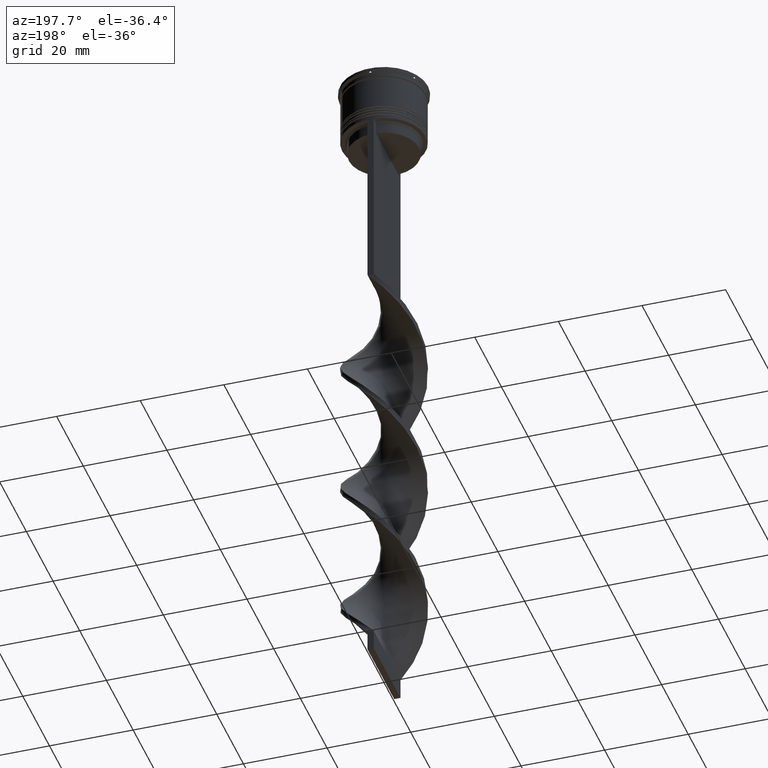
[diagram: clean part render]
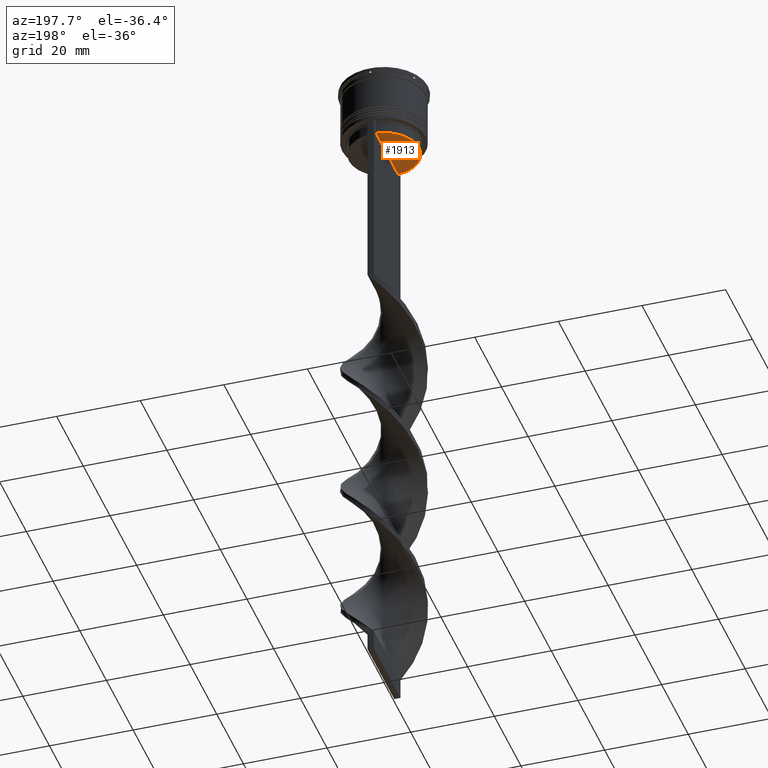
[diagram: same view with one face highlighted and labeled with its STEP entity id]
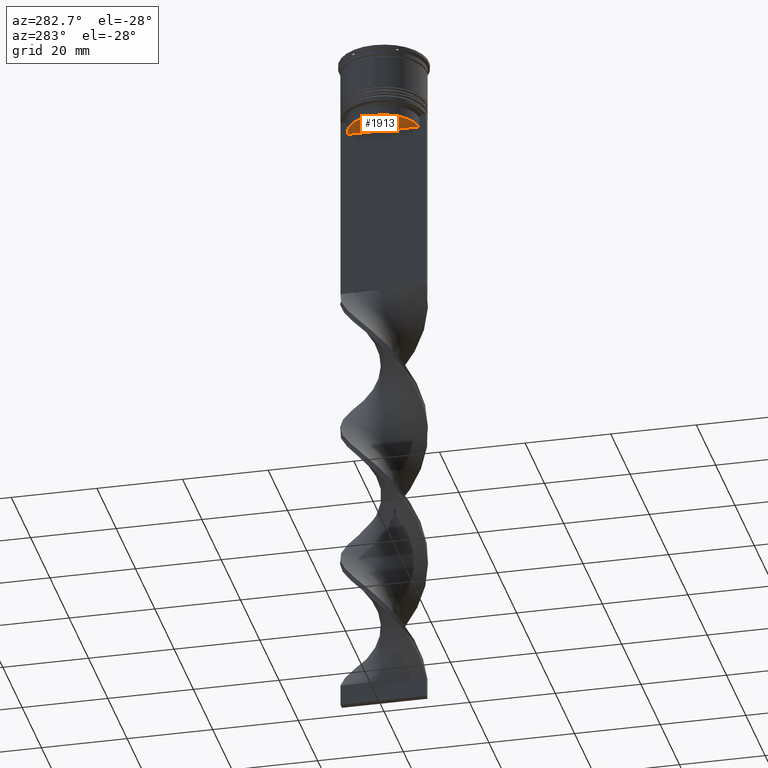
[diagram: same view with one face highlighted and labeled with its STEP entity id]
A machine part, auxiliary view. The second image highlights one B-rep face of the part: STEP entity #1913.
A second angle (auxiliary view) of the same face is appended — the face is thin or edge-on in the first view.
In plain terms, the highlighted planar face has unit normal (0, -0, 1).
Its self-contained STEP definition (entity closure, byte-faithful):
#112 = CIRCLE ( 'NONE', #235, 8.400000000000003908 ) ;
#235 = AXIS2_PLACEMENT_3D ( 'NONE', #1210, #3638, #3008 ) ;
#352 = PLANE ( 'NONE',  #366 ) ;
#366 = AXIS2_PLACEMENT_3D ( 'NONE', #436, #3394, #3734 ) ;
#371 = VECTOR ( 'NONE', #3419, 1000.000000000000000 ) ;
#400 = EDGE_LOOP ( 'NONE', ( #1819, #588 ) ) ;
#436 = CARTESIAN_POINT ( 'NONE',  ( 0.000000000000000000, 8.400000000000003908, -17.00000000000000000 ) ) ;
#588 = ORIENTED_EDGE ( 'NONE', *, *, #3402, .T. ) ;
#1016 = LINE ( 'NONE', #3700, #371 ) ;
#1210 = CARTESIAN_POINT ( 'NONE',  ( 0.000000000000000000, 0.000000000000000000, -17.00000000000000000 ) ) ;
#1286 = FACE_OUTER_BOUND ( 'NONE', #400, .T. ) ;
#1314 = EDGE_CURVE ( 'NONE', #3636, #2697, #112, .T. ) ;
#1819 = ORIENTED_EDGE ( 'NONE', *, *, #1314, .F. ) ;
#1913 = ADVANCED_FACE ( 'NONE', ( #1286 ), #352, .F. ) ;
#2697 = VERTEX_POINT ( 'NONE', #2862 ) ;
#2862 = CARTESIAN_POINT ( 'NONE',  ( -0.7499999999999997780, -8.366450860430608927, -17.00000000000000000 ) ) ;
#3008 = DIRECTION ( 'NONE',  ( 1.000000000000000000, 0.000000000000000000, 0.000000000000000000 ) ) ;
#3177 = CARTESIAN_POINT ( 'NONE',  ( -0.7499999999999997780, 8.366450860430608927, -17.00000000000000000 ) ) ;
#3394 = DIRECTION ( 'NONE',  ( 0.000000000000000000, -0.000000000000000000, 1.000000000000000000 ) ) ;
#3402 = EDGE_CURVE ( 'NONE', #3636, #2697, #1016, .T. ) ;
#3419 = DIRECTION ( 'NONE',  ( 0.000000000000000000, -1.000000000000000000, 0.000000000000000000 ) ) ;
#3636 = VERTEX_POINT ( 'NONE', #3177 ) ;
#3638 = DIRECTION ( 'NONE',  ( -0.000000000000000000, -0.000000000000000000, 1.000000000000000000 ) ) ;
#3700 = CARTESIAN_POINT ( 'NONE',  ( -0.7499999999999997780, 8.400000000000003908, -17.00000000000000000 ) ) ;
#3734 = DIRECTION ( 'NONE',  ( 1.000000000000000000, 0.000000000000000000, 0.000000000000000000 ) ) ;